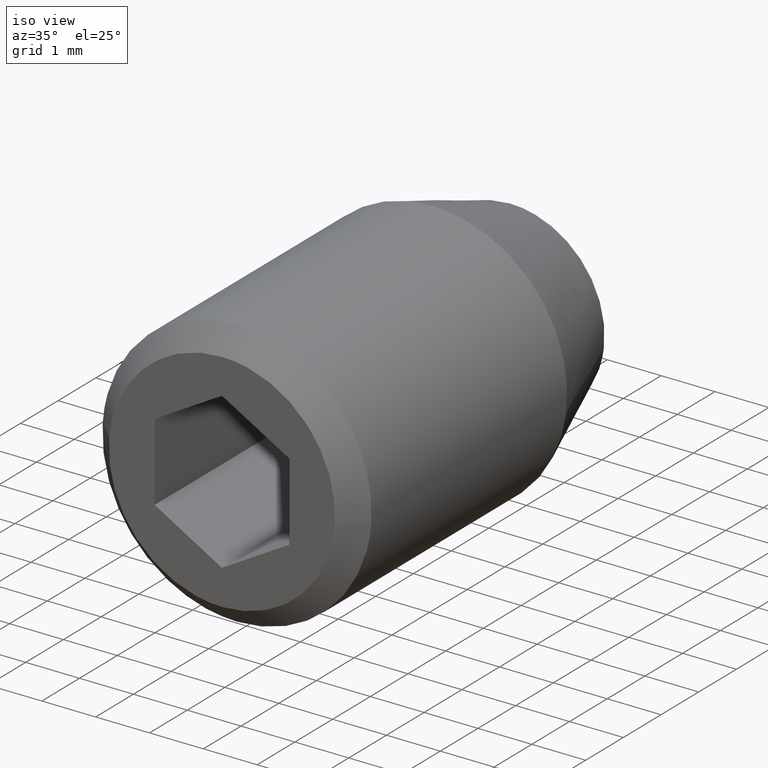
[diagram: clean part render]
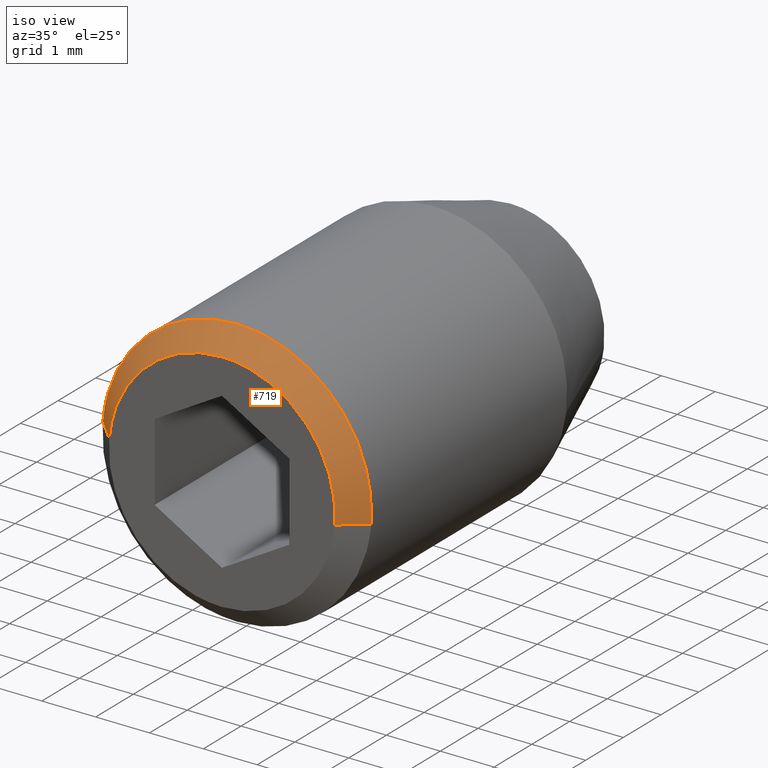
[diagram: same view with one face highlighted and labeled with its STEP entity id]
A machine part, iso view. The second image highlights one B-rep face of the part: STEP entity #719.
In plain terms, the highlighted face is a freeform B-spline surface patch.
Its self-contained STEP definition (entity closure, byte-faithful):
#353=CARTESIAN_POINT('',(-2.492293334333160,-7.249999999999146,0.196147739326167));
#354=VERTEX_POINT('',#353);
#368=CARTESIAN_POINT('',(0.0,-7.250000000000000,2.500000000000000));
#369=VERTEX_POINT('',#368);
#370=CARTESIAN_POINT('',(0.0,-7.250000000000000,2.500000000000000));
#371=CARTESIAN_POINT('',(-2.310976229133436,-7.250000000000001,2.500000000000000));
#372=CARTESIAN_POINT('',(-2.492293334333160,-7.249999999999146,0.196147739326167));
#380=(BOUNDED_CURVE()B_SPLINE_CURVE(2,(#370,#371,#372),.UNSPECIFIED.,.F.,.U.)B_SPLINE_CURVE_WITH_KNOTS((3,3),(0.500000000000000,0.736331300631873),.UNSPECIFIED.)CURVE()GEOMETRIC_REPRESENTATION_ITEM()RATIONAL_B_SPLINE_CURVE((1.0,0.723120658606244,0.969723356169951))REPRESENTATION_ITEM(''));
#381=EDGE_CURVE('',#369,#354,#380,.T.);
#383=CARTESIAN_POINT('',(2.492293334333160,-7.249999999999146,-0.196147739326167));
#384=VERTEX_POINT('',#383);
#385=CARTESIAN_POINT('',(2.492293334333161,-7.249999999999146,-0.196147739326167));
#386=CARTESIAN_POINT('',(2.500000000000000,-7.250000000000000,-0.098225267525691));
#387=CARTESIAN_POINT('',(2.500000000000000,-7.250000000000000,-5.143347E-016));
#388=CARTESIAN_POINT('',(2.500000000000000,-7.250000000000000,2.500000000000000));
#389=CARTESIAN_POINT('',(0.0,-7.250000000000000,2.500000000000000));
#397=(BOUNDED_CURVE()B_SPLINE_CURVE(2,(#385,#386,#387,#388,#389),.UNSPECIFIED.,.F.,.U.)B_SPLINE_CURVE_WITH_KNOTS((3,2,3),(0.236331300631875,0.250000000000000,0.500000000000000),.UNSPECIFIED.)CURVE()GEOMETRIC_REPRESENTATION_ITEM()RATIONAL_B_SPLINE_CURVE((0.969723356169953,0.983986122580305,1.0,0.707106781186548,1.0))REPRESENTATION_ITEM(''));
#398=EDGE_CURVE('',#384,#369,#397,.T.);
#616=CARTESIAN_POINT('',(2.093526400840046,-7.649999999998801,-0.164764101037666));
#617=VERTEX_POINT('',#616);
#631=CARTESIAN_POINT('',(-2.093526400840046,-7.649999999998801,0.164764101037665));
#632=VERTEX_POINT('',#631);
#648=CARTESIAN_POINT('',(-2.093526400840046,-7.649999999998801,0.164764101037665));
#649=CARTESIAN_POINT('',(-2.492293334333160,-7.249999999999146,0.196147739326167));
#650=QUASI_UNIFORM_CURVE('',1,(#648,#649),.UNSPECIFIED.,.F.,.U.);
#651=EDGE_CURVE('',#632,#354,#650,.T.);
#657=CARTESIAN_POINT('',(2.093526400840046,-7.649999999998801,-0.164764101037666));
#658=CARTESIAN_POINT('',(2.492293334333160,-7.249999999999146,-0.196147739326167));
#659=QUASI_UNIFORM_CURVE('',1,(#657,#658),.UNSPECIFIED.,.F.,.U.);
#660=EDGE_CURVE('',#617,#384,#659,.T.);
#665=CARTESIAN_POINT('',(-2.083557227502236,-7.660000000000000,0.163979510071197));
#666=CARTESIAN_POINT('',(-1.919577717431039,-7.660000000000000,2.247536737573432));
#667=CARTESIAN_POINT('',(0.163979510071197,-7.660000000000000,2.083557227502235));
#668=CARTESIAN_POINT('',(2.247536737573432,-7.660000000000000,1.919577717431037));
#669=CARTESIAN_POINT('',(2.083557227502236,-7.660000000000000,-0.163979510071198));
#670=CARTESIAN_POINT('',(-2.502511737003584,-7.239749999999999,0.196951945050824));
#671=CARTESIAN_POINT('',(-2.305559791952760,-7.239749999999998,2.699463682054407));
#672=CARTESIAN_POINT('',(0.196951945050824,-7.239749999999999,2.502511737003583));
#673=CARTESIAN_POINT('',(2.699463682054407,-7.239749999999998,2.305559791952760));
#674=CARTESIAN_POINT('',(2.502511737003584,-7.239749999999999,-0.196951945050825));
#682=(BOUNDED_SURFACE()B_SPLINE_SURFACE(2,1,((#665,#670),(#666,#671),(#667,#672),(#668,#673),(#669,#674)),.UNSPECIFIED.,.F.,.F.,.U.)B_SPLINE_SURFACE_WITH_KNOTS((3,2,3),(2,2),(0.0,4.159118379788247,8.318236759576493),(0.0,1.0),.UNSPECIFIED.)GEOMETRIC_REPRESENTATION_ITEM()RATIONAL_B_SPLINE_SURFACE(((1.0,1.0),(0.707106781186548,0.707106781186548),(1.0,1.0),(0.707106781186548,0.707106781186548),(1.0,1.0)))REPRESENTATION_ITEM('')SURFACE());
#683=CARTESIAN_POINT('',(0.0,-7.650000000000000,2.100000000000000));
#684=VERTEX_POINT('',#683);
#685=CARTESIAN_POINT('',(2.093526400840046,-7.649999999998801,-0.164764101037666));
#686=CARTESIAN_POINT('',(2.100000000000001,-7.650000000000000,-0.082509224725246));
#687=CARTESIAN_POINT('',(2.100000000000000,-7.650000000000000,-5.143347E-016));
#688=CARTESIAN_POINT('',(2.100000000000000,-7.650000000000000,2.100000000000000));
#689=CARTESIAN_POINT('',(0.0,-7.650000000000000,2.100000000000000));
#697=(BOUNDED_CURVE()B_SPLINE_CURVE(2,(#685,#686,#687,#688,#689),.UNSPECIFIED.,.F.,.U.)B_SPLINE_CURVE_WITH_KNOTS((3,2,3),(0.236331300631277,0.250000000000000,0.500000000000000),.UNSPECIFIED.)CURVE()GEOMETRIC_REPRESENTATION_ITEM()RATIONAL_B_SPLINE_CURVE((0.969723356168706,0.983986122579605,1.0,0.707106781186548,1.0))REPRESENTATION_ITEM(''));
#698=EDGE_CURVE('',#617,#684,#697,.T.);
#699=ORIENTED_EDGE('',*,*,#698,.F.);
#700=ORIENTED_EDGE('',*,*,#660,.T.);
#701=ORIENTED_EDGE('',*,*,#398,.T.);
#702=ORIENTED_EDGE('',*,*,#381,.T.);
#703=ORIENTED_EDGE('',*,*,#651,.F.);
#704=CARTESIAN_POINT('',(0.0,-7.650000000000000,2.100000000000000));
#705=CARTESIAN_POINT('',(-1.941220032465302,-7.650000000000000,2.100000000000000));
#706=CARTESIAN_POINT('',(-2.093526400840046,-7.649999999998802,0.164764101037665));
#714=(BOUNDED_CURVE()B_SPLINE_CURVE(2,(#704,#705,#706),.UNSPECIFIED.,.F.,.U.)B_SPLINE_CURVE_WITH_KNOTS((3,3),(0.500000000000000,0.736331300631276),.UNSPECIFIED.)CURVE()GEOMETRIC_REPRESENTATION_ITEM()RATIONAL_B_SPLINE_CURVE((1.0,0.723120658606943,0.969723356168704))REPRESENTATION_ITEM(''));
#715=EDGE_CURVE('',#684,#632,#714,.T.);
#716=ORIENTED_EDGE('',*,*,#715,.F.);
#717=EDGE_LOOP('',(#699,#700,#701,#702,#703,#716));
#718=FACE_OUTER_BOUND('',#717,.T.);
#719=ADVANCED_FACE('',(#718),#682,.T.);